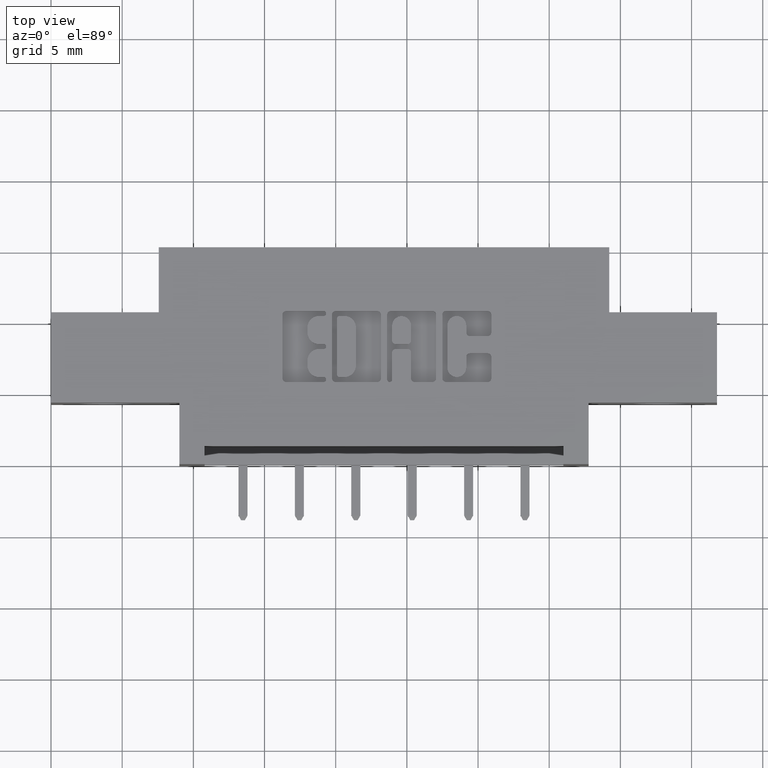
[diagram: clean part render]
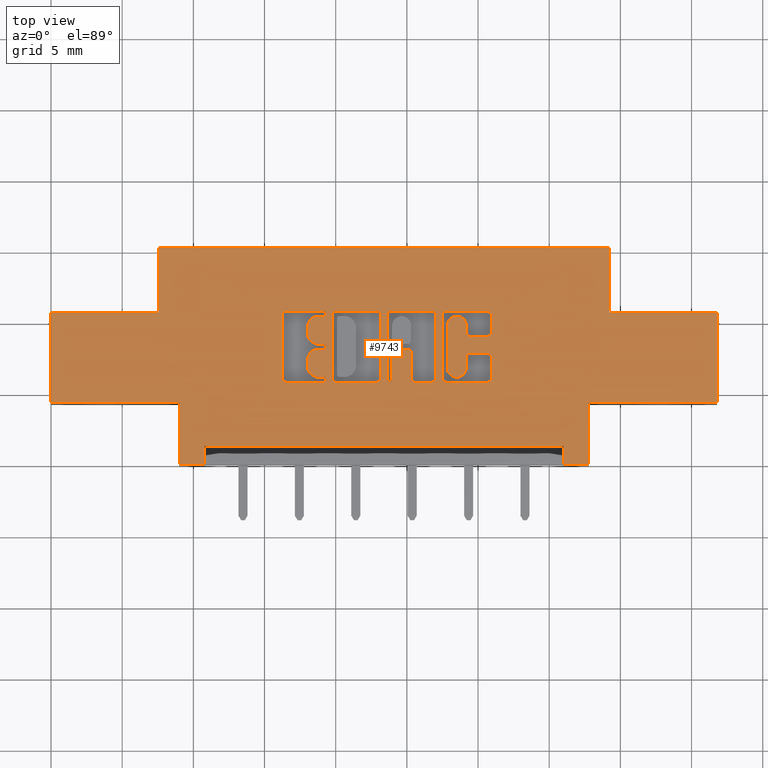
[diagram: same view with one face highlighted and labeled with its STEP entity id]
A machine part, top view. The second image highlights one B-rep face of the part: STEP entity #9743.
In plain terms, the highlighted planar face has unit normal (0, 0, -1).
Its self-contained STEP definition (entity closure, byte-faithful):
#21 = CARTESIAN_POINT ( 'NONE',  ( 0.9433306497136472200, 0.3083133606535449800, 0.0000000000000000000 ) ) ;
#33 = EDGE_CURVE ( 'NONE', #8542, #6679, #8285, .T. ) ;
#39 = ORIENTED_EDGE ( 'NONE', *, *, #1514, .F. ) ;
#88 = DIRECTION ( 'NONE',  ( -0.0000000000000000000, 1.000000000000000000, -0.0000000000000000000 ) ) ;
#108 = DIRECTION ( 'NONE',  ( -1.000000000000000000, -0.0000000000000000000, -0.0000000000000000000 ) ) ;
#117 = DIRECTION ( 'NONE',  ( -0.0000000000000000000, 0.0000000000000000000, 1.000000000000000000 ) ) ;
#128 = CARTESIAN_POINT ( 'NONE',  ( 0.7867707099629762700, 0.2366589681657893500, 0.0000000000000000000 ) ) ;
#139 = LINE ( 'NONE', #2019, #152 ) ;
#141 = DIRECTION ( 'NONE',  ( -0.0000000000000000000, 0.0000000000000000000, 1.000000000000000000 ) ) ;
#150 = CARTESIAN_POINT ( 'NONE',  ( 0.7406370600050843400, 0.3632811137948577800, 0.0000000000000000000 ) ) ;
#152 = VECTOR ( 'NONE', #2047, 39.37007874015748100 ) ;
#153 = CARTESIAN_POINT ( 'NONE',  ( 0.7610045756779980600, 0.2337142671046473500, 0.0000000000000000000 ) ) ;
#156 = CARTESIAN_POINT ( 'NONE',  ( 1.092038053301299700, 0.4133410318342095000, 0.0000000000000000000 ) ) ;
#182 = VERTEX_POINT ( 'NONE', #4672 ) ;
#203 = CIRCLE ( 'NONE', #4453, 0.03141014465218178200 ) ;
#209 = DIRECTION ( 'NONE',  ( 1.000000000000000000, 0.0000000000000000000, 0.0000000000000000000 ) ) ;
#219 = DIRECTION ( 'NONE',  ( -0.0000000000000000000, 0.0000000000000000000, 1.000000000000000000 ) ) ;
#223 = EDGE_CURVE ( 'NONE', #9646, #931, #8134, .T. ) ;
#237 = CARTESIAN_POINT ( 'NONE',  ( 1.055229290037010800, 0.2268432979619840200, 0.0000000000000000000 ) ) ;
#252 = DIRECTION ( 'NONE',  ( -0.0000000000000000000, 0.0000000000000000000, 1.000000000000000000 ) ) ;
#266 = ORIENTED_EDGE ( 'NONE', *, *, #223, .F. ) ;
#284 = EDGE_CURVE ( 'NONE', #9418, #9646, #8185, .T. ) ;
#287 = EDGE_CURVE ( 'NONE', #1601, #9418, #8143, .T. ) ;
#316 = DIRECTION ( 'NONE',  ( 1.000000000000000000, 0.0000000000000000000, 0.0000000000000000000 ) ) ;
#399 = CIRCLE ( 'NONE', #4157, 0.009815670203822599700 ) ;
#407 = VERTEX_POINT ( 'NONE', #8339 ) ;
#413 = VECTOR ( 'NONE', #4755, 39.37007874015748100 ) ;
#421 = LINE ( 'NONE', #3508, #413 ) ;
#422 = CARTESIAN_POINT ( 'NONE',  ( 0.0000000000000000000, 0.5999999999999999800, 0.0000000000000000000 ) ) ;
#427 = CARTESIAN_POINT ( 'NONE',  ( 0.0000000000000000000, 0.4199999999999999800, 0.0000000000000000000 ) ) ;
#441 = CARTESIAN_POINT ( 'NONE',  ( 0.7541336064154146000, 0.2268432979619851300, 0.0000000000000000000 ) ) ;
#452 = AXIS2_PLACEMENT_3D ( 'NONE', #5043, #5027, #5007 ) ;
#495 = EDGE_CURVE ( 'NONE', #7582, #1601, #7491, .T. ) ;
#496 = LINE ( 'NONE', #9328, #771 ) ;
#503 = EDGE_CURVE ( 'NONE', #5345, #10076, #7636, .T. ) ;
#507 = CARTESIAN_POINT ( 'NONE',  ( 0.6498421106199383500, 0.4133410318342095000, 0.0000000000000000000 ) ) ;
#514 = EDGE_CURVE ( 'NONE', #5527, #7582, #7455, .T. ) ;
#530 = CARTESIAN_POINT ( 'NONE',  ( 0.3549999999999999800, 0.1699999999999999800, 0.0000000000000000000 ) ) ;
#547 = EDGE_CURVE ( 'NONE', #8929, #5527, #7449, .T. ) ;
#589 = CARTESIAN_POINT ( 'NONE',  ( 0.0000000000000000000, 0.5999999999999999800, 0.0000000000000000000 ) ) ;
#590 = VERTEX_POINT ( 'NONE', #9009 ) ;
#596 = AXIS2_PLACEMENT_3D ( 'NONE', #671, #668, #1829 ) ;
#616 = VERTEX_POINT ( 'NONE', #7926 ) ;
#622 = EDGE_CURVE ( 'NONE', #5489, #5962, #7249, .T. ) ;
#668 = DIRECTION ( 'NONE',  ( -0.0000000000000000000, 0.0000000000000000000, 1.000000000000000000 ) ) ;
#671 = CARTESIAN_POINT ( 'NONE',  ( 1.158293827176967400, 0.2965345564089689700, 0.0000000000000000000 ) ) ;
#672 = ORIENTED_EDGE ( 'NONE', *, *, #5247, .T. ) ;
#676 = CARTESIAN_POINT ( 'NONE',  ( 0.9124112885716693100, 0.0000000000000000000, 0.0000000000000000000 ) ) ;
#680 = ORIENTED_EDGE ( 'NONE', *, *, #33, .F. ) ;
#716 = EDGE_CURVE ( 'NONE', #5034, #8929, #7025, .T. ) ;
#717 = EDGE_CURVE ( 'NONE', #5621, #9828, #7047, .T. ) ;
#722 = ORIENTED_EDGE ( 'NONE', *, *, #1473, .F. ) ;
#741 = VECTOR ( 'NONE', #5679, 39.37007874015748100 ) ;
#744 = ORIENTED_EDGE ( 'NONE', *, *, #4289, .F. ) ;
#752 = LINE ( 'NONE', #6107, #741 ) ;
#757 = EDGE_CURVE ( 'NONE', #942, #9828, #6960, .T. ) ;
#766 = CARTESIAN_POINT ( 'NONE',  ( 1.092038053301299700, 0.4231567020380504500, 0.0000000000000000000 ) ) ;
#768 = EDGE_CURVE ( 'NONE', #5962, #7728, #6931, .T. ) ;
#771 = VECTOR ( 'NONE', #1612, 39.37007874015748100 ) ;
#794 = CARTESIAN_POINT ( 'NONE',  ( 0.7867707099630104600, 0.4133410318342095000, 0.0000000000000000000 ) ) ;
#800 = CIRCLE ( 'NONE', #5126, 0.009815670203841039800 ) ;
#806 = EDGE_CURVE ( 'NONE', #7728, #6201, #6831, .T. ) ;
#810 = DIRECTION ( 'NONE',  ( 1.000000000000000000, 0.0000000000000000000, 0.0000000000000000000 ) ) ;
#841 = DIRECTION ( 'NONE',  ( -0.0000000000000000000, 0.0000000000000000000, 1.000000000000000000 ) ) ;
#847 = EDGE_CURVE ( 'NONE', #6201, #8828, #6662, .T. ) ;
#872 = EDGE_CURVE ( 'NONE', #942, #7077, #6530, .T. ) ;
#875 = FACE_BOUND ( 'NONE', #9797, .T. ) ;
#884 = EDGE_CURVE ( 'NONE', #8828, #6584, #6486, .T. ) ;
#888 = EDGE_CURVE ( 'NONE', #2875, #7077, #6730, .T. ) ;
#904 = VECTOR ( 'NONE', #3423, 39.37007874015748100 ) ;
#918 = CARTESIAN_POINT ( 'NONE',  ( 1.842000000000000700, 0.1699999999999999800, 2.255799404029425300E-016 ) ) ;
#920 = ORIENTED_EDGE ( 'NONE', *, *, #503, .F. ) ;
#931 = VERTEX_POINT ( 'NONE', #6087 ) ;
#935 = VERTEX_POINT ( 'NONE', #4328 ) ;
#942 = VERTEX_POINT ( 'NONE', #2085 ) ;
#952 = VERTEX_POINT ( 'NONE', #3290 ) ;
#956 = EDGE_CURVE ( 'NONE', #2875, #7494, #6340, .T. ) ;
#960 = EDGE_CURVE ( 'NONE', #8075, #7494, #6200, .T. ) ;
#1002 = CARTESIAN_POINT ( 'NONE',  ( 0.7769550397591695700, 0.0000000000000000000, 0.0000000000000000000 ) ) ;
#1020 = LINE ( 'NONE', #9261, #904 ) ;
#1027 = ORIENTED_EDGE ( 'NONE', *, *, #284, .F. ) ;
#1045 = EDGE_CURVE ( 'NONE', #2731, #3276, #5266, .T. ) ;
#1055 = ORIENTED_EDGE ( 'NONE', *, *, #1512, .F. ) ;
#1064 = CARTESIAN_POINT ( 'NONE',  ( 1.082222383097458900, 0.4133410318342095000, 0.0000000000000000000 ) ) ;
#1073 = VECTOR ( 'NONE', #1980, 39.37007874015748100 ) ;
#1081 = CIRCLE ( 'NONE', #3833, 0.009815670203806345400 ) ;
#1092 = ORIENTED_EDGE ( 'NONE', *, *, #1623, .F. ) ;
#1106 = EDGE_CURVE ( 'NONE', #8075, #5968, #4146, .T. ) ;
#1132 = ORIENTED_EDGE ( 'NONE', *, *, #287, .F. ) ;
#1144 = VECTOR ( 'NONE', #6447, 39.37007874015748100 ) ;
#1158 = FACE_BOUND ( 'NONE', #6400, .T. ) ;
#1159 = EDGE_CURVE ( 'NONE', #6584, #6630, #3474, .T. ) ;
#1189 = VERTEX_POINT ( 'NONE', #3722 ) ;
#1219 = EDGE_CURVE ( 'NONE', #5968, #1914, #3357, .T. ) ;
#1242 = EDGE_CURVE ( 'NONE', #1914, #407, #3030, .T. ) ;
#1278 = EDGE_CURVE ( 'NONE', #590, #5514, #2960, .T. ) ;
#1279 = LINE ( 'NONE', #2430, #1073 ) ;
#1282 = VERTEX_POINT ( 'NONE', #7853 ) ;
#1300 = DIRECTION ( 'NONE',  ( -0.0000000000000000000, -1.000000000000000000, -0.0000000000000000000 ) ) ;
#1343 = CARTESIAN_POINT ( 'NONE',  ( -0.0000000000000000000, 0.4094147637527351100, 0.0000000000000000000 ) ) ;
#1373 = VECTOR ( 'NONE', #5299, 39.37007874015748100 ) ;
#1388 = VERTEX_POINT ( 'NONE', #8368 ) ;
#1410 = EDGE_CURVE ( 'NONE', #407, #6403, #2510, .T. ) ;
#1427 = DIRECTION ( 'NONE',  ( 1.000000000000000000, 0.0000000000000000000, 0.0000000000000000000 ) ) ;
#1431 = LINE ( 'NONE', #6019, #1373 ) ;
#1438 = EDGE_CURVE ( 'NONE', #9437, #590, #1898, .T. ) ;
#1450 = ORIENTED_EDGE ( 'NONE', *, *, #495, .F. ) ;
#1473 = EDGE_CURVE ( 'NONE', #6630, #7035, #1431, .T. ) ;
#1483 = VERTEX_POINT ( 'NONE', #5923 ) ;
#1489 = VECTOR ( 'NONE', #108, 39.37007874015748100 ) ;
#1496 = AXIS2_PLACEMENT_3D ( 'NONE', #2896, #3178, #2995 ) ;
#1499 = EDGE_CURVE ( 'NONE', #6403, #7618, #1738, .T. ) ;
#1503 = ORIENTED_EDGE ( 'NONE', *, *, #3477, .F. ) ;
#1508 = AXIS2_PLACEMENT_3D ( 'NONE', #5809, #252, #6722 ) ;
#1512 = EDGE_CURVE ( 'NONE', #3323, #8557, #1279, .T. ) ;
#1514 = EDGE_CURVE ( 'NONE', #7035, #952, #1081, .T. ) ;
#1567 = DIRECTION ( 'NONE',  ( 1.000000000000000000, 0.0000000000000000000, 0.0000000000000000000 ) ) ;
#1578 = ORIENTED_EDGE ( 'NONE', *, *, #3872, .F. ) ;
#1601 = VERTEX_POINT ( 'NONE', #6713 ) ;
#1604 = DIRECTION ( 'NONE',  ( 1.000000000000000000, 0.0000000000000000000, 0.0000000000000000000 ) ) ;
#1612 = DIRECTION ( 'NONE',  ( -0.0000000000000000000, -1.000000000000000000, -0.0000000000000000000 ) ) ;
#1623 = EDGE_CURVE ( 'NONE', #9794, #5345, #421, .T. ) ;
#1631 = CARTESIAN_POINT ( 'NONE',  ( 0.7769550397591695700, 0.2366589681657893500, 0.0000000000000000000 ) ) ;
#1641 = DIRECTION ( 'NONE',  ( -0.0000000000000000000, 0.0000000000000000000, 1.000000000000000000 ) ) ;
#1652 = CARTESIAN_POINT ( 'NONE',  ( 1.158293827176977600, 0.3637718973050446100, 0.0000000000000000000 ) ) ;
#1654 = CARTESIAN_POINT ( 'NONE',  ( 0.7406370600050843400, 0.3318709691426832700, 0.0000000000000000000 ) ) ;
#1661 = LINE ( 'NONE', #10205, #1489 ) ;
#1686 = EDGE_CURVE ( 'NONE', #952, #616, #139, .T. ) ;
#1733 = EDGE_CURVE ( 'NONE', #616, #6072, #8330, .T. ) ;
#1736 = DIRECTION ( 'NONE',  ( -0.0000000000000000000, 0.0000000000000000000, 1.000000000000000000 ) ) ;
#1738 = LINE ( 'NONE', #8567, #1144 ) ;
#1762 = EDGE_CURVE ( 'NONE', #2519, #7618, #8274, .T. ) ;
#1763 = EDGE_CURVE ( 'NONE', #2519, #5009, #8266, .T. ) ;
#1775 = EDGE_CURVE ( 'NONE', #5621, #5009, #7478, .T. ) ;
#1780 = CARTESIAN_POINT ( 'NONE',  ( 0.2980000000000001000, 0.5999999999999999800, 0.0000000000000000000 ) ) ;
#1789 = ORIENTED_EDGE ( 'NONE', *, *, #3949, .F. ) ;
#1813 = VECTOR ( 'NONE', #5616, 39.37007874015748100 ) ;
#1829 = DIRECTION ( 'NONE',  ( 1.000000000000000000, 0.0000000000000000000, 0.0000000000000000000 ) ) ;
#1859 = EDGE_CURVE ( 'NONE', #6131, #2404, #6070, .T. ) ;
#1876 = EDGE_CURVE ( 'NONE', #5074, #2404, #5825, .T. ) ;
#1898 = LINE ( 'NONE', #8990, #1813 ) ;
#1914 = VERTEX_POINT ( 'NONE', #8551 ) ;
#1926 = AXIS2_PLACEMENT_3D ( 'NONE', #589, #9302, #4446 ) ;
#1980 = DIRECTION ( 'NONE',  ( -1.000000000000000000, 0.0000000000000000000, 0.0000000000000000000 ) ) ;
#2002 = VERTEX_POINT ( 'NONE', #427 ) ;
#2019 = CARTESIAN_POINT ( 'NONE',  ( 1.217678631909940400, 0.0000000000000000000, 0.0000000000000000000 ) ) ;
#2047 = DIRECTION ( 'NONE',  ( 0.0000000000000000000, 1.000000000000000000, -0.0000000000000000000 ) ) ;
#2071 = AXIS2_PLACEMENT_3D ( 'NONE', #10180, #5864, #316 ) ;
#2085 = CARTESIAN_POINT ( 'NONE',  ( 1.065044960240807000, 0.4133410318342003500, 0.0000000000000000000 ) ) ;
#2098 = ORIENTED_EDGE ( 'NONE', *, *, #9593, .F. ) ;
#2107 = AXIS2_PLACEMENT_3D ( 'NONE', #7045, #2501, #8288 ) ;
#2138 = ORIENTED_EDGE ( 'NONE', *, *, #4144, .F. ) ;
#2153 = VERTEX_POINT ( 'NONE', #9396 ) ;
#2170 = VERTEX_POINT ( 'NONE', #10214 ) ;
#2183 = DIRECTION ( 'NONE',  ( 1.000000000000000000, 0.0000000000000000000, 0.0000000000000000000 ) ) ;
#2255 = CARTESIAN_POINT ( 'NONE',  ( 1.005660155507788200, 0.2366589681657872400, 0.0000000000000000000 ) ) ;
#2282 = DIRECTION ( 'NONE',  ( -0.0000000000000000000, 0.0000000000000000000, 1.000000000000000000 ) ) ;
#2287 = DIRECTION ( 'NONE',  ( 0.0000000000000000000, -1.000000000000000000, 0.0000000000000000000 ) ) ;
#2324 = CARTESIAN_POINT ( 'NONE',  ( 0.7406370600051098700, 0.2719953808994897700, 0.0000000000000000000 ) ) ;
#2347 = DIRECTION ( 'NONE',  ( 1.000000000000000000, 0.0000000000000000000, 0.0000000000000000000 ) ) ;
#2357 = LINE ( 'NONE', #8070, #2521 ) ;
#2364 = DIRECTION ( 'NONE',  ( -0.0000000000000000000, 0.0000000000000000000, 1.000000000000000000 ) ) ;
#2366 = VERTEX_POINT ( 'NONE', #9384 ) ;
#2392 = CARTESIAN_POINT ( 'NONE',  ( 0.7541336065353515500, 0.4162857328953856700, 0.0000000000000000000 ) ) ;
#2404 = VERTEX_POINT ( 'NONE', #9995 ) ;
#2427 = EDGE_CURVE ( 'NONE', #9437, #9932, #8169, .T. ) ;
#2430 = CARTESIAN_POINT ( 'NONE',  ( 0.0000000000000000000, 0.3318709691426832700, 0.0000000000000000000 ) ) ;
#2433 = DIRECTION ( 'NONE',  ( -1.000000000000000000, 0.0000000000000000000, 0.0000000000000000000 ) ) ;
#2445 = CARTESIAN_POINT ( 'NONE',  ( -0.0000000000000000000, 0.4231567020380060400, 0.0000000000000000000 ) ) ;
#2453 = DIRECTION ( 'NONE',  ( 1.000000000000000000, 0.0000000000000000000, 0.0000000000000000000 ) ) ;
#2501 = DIRECTION ( 'NONE',  ( -0.0000000000000000000, 0.0000000000000000000, 1.000000000000000000 ) ) ;
#2510 = CIRCLE ( 'NONE', #7091, 0.009815670203803203800 ) ;
#2519 = VERTEX_POINT ( 'NONE', #5794 ) ;
#2521 = VECTOR ( 'NONE', #7936, 39.37007874015748100 ) ;
#2523 = ORIENTED_EDGE ( 'NONE', *, *, #9678, .F. ) ;
#2529 = CARTESIAN_POINT ( 'NONE',  ( 0.0000000000000000000, 0.3063502266127569600, 0.0000000000000000000 ) ) ;
#2535 = DIRECTION ( 'NONE',  ( 1.000000000000000000, 0.0000000000000000000, 0.0000000000000000000 ) ) ;
#2554 = CARTESIAN_POINT ( 'NONE',  ( 1.148478156973166100, 0.0000000000000000000, 0.0000000000000000000 ) ) ;
#2590 = EDGE_CURVE ( 'NONE', #6072, #182, #7704, .T. ) ;
#2591 = EDGE_CURVE ( 'NONE', #9401, #2170, #7462, .T. ) ;
#2595 = CARTESIAN_POINT ( 'NONE',  ( 1.095964321382818700, 0.3831578459575290000, 0.0000000000000000000 ) ) ;
#2596 = CARTESIAN_POINT ( 'NONE',  ( 0.0000000000000000000, 0.4231567020380321300, 0.0000000000000000000 ) ) ;
#2612 = CARTESIAN_POINT ( 'NONE',  ( 1.055229290037014200, 0.4231567020380060400, 0.0000000000000000000 ) ) ;
#2620 = AXIS2_PLACEMENT_3D ( 'NONE', #150, #141, #5424 ) ;
#2637 = DIRECTION ( 'NONE',  ( 1.000000000000000000, 0.0000000000000000000, 0.0000000000000000000 ) ) ;
#2641 = CIRCLE ( 'NONE', #1508, 0.006870969142663458500 ) ;
#2719 = CIRCLE ( 'NONE', #9373, 0.009815670203805798900 ) ;
#2731 = VERTEX_POINT ( 'NONE', #8246 ) ;
#2762 = ORIENTED_EDGE ( 'NONE', *, *, #4692, .F. ) ;
#2784 = DIRECTION ( 'NONE',  ( 1.000000000000000000, 0.0000000000000000000, 0.0000000000000000000 ) ) ;
#2857 = DIRECTION ( 'NONE',  ( 1.000000000000000000, -0.0000000000000000000, -0.0000000000000000000 ) ) ;
#2875 = VERTEX_POINT ( 'NONE', #237 ) ;
#2889 = VECTOR ( 'NONE', #1427, 39.37007874015748100 ) ;
#2896 = CARTESIAN_POINT ( 'NONE',  ( 1.122221239177992400, 0.3831578459575290000, 0.0000000000000000000 ) ) ;
#2903 = ORIENTED_EDGE ( 'NONE', *, *, #4783, .F. ) ;
#2930 = EDGE_CURVE ( 'NONE', #182, #6131, #5178, .T. ) ;
#2946 = CARTESIAN_POINT ( 'NONE',  ( 0.9394043816321276900, 0.4231567020380060400, 0.0000000000000000000 ) ) ;
#2954 = EDGE_CURVE ( 'NONE', #1189, #9932, #5082, .T. ) ;
#2960 = CIRCLE ( 'NONE', #7343, 0.006870969142663458500 ) ;
#2995 = DIRECTION ( 'NONE',  ( 1.000000000000000000, 0.0000000000000000000, 0.0000000000000000000 ) ) ;
#3006 = VECTOR ( 'NONE', #9779, 39.37007874015748100 ) ;
#3012 = VECTOR ( 'NONE', #10392, 39.37007874015748100 ) ;
#3025 = LINE ( 'NONE', #1343, #2889 ) ;
#3030 = LINE ( 'NONE', #8425, #3006 ) ;
#3166 = LINE ( 'NONE', #7917, #3012 ) ;
#3175 = CIRCLE ( 'NONE', #7714, 0.009815670203811535700 ) ;
#3178 = DIRECTION ( 'NONE',  ( -0.0000000000000000000, 0.0000000000000000000, 1.000000000000000000 ) ) ;
#3220 = CIRCLE ( 'NONE', #1496, 0.02625691779517367100 ) ;
#3223 = CIRCLE ( 'NONE', #6040, 0.006870969142648433200 ) ;
#3247 = EDGE_CURVE ( 'NONE', #2731, #8557, #3393, .T. ) ;
#3250 = EDGE_CURVE ( 'NONE', #5074, #7595, #3383, .T. ) ;
#3276 = VERTEX_POINT ( 'NONE', #7742 ) ;
#3290 = CARTESIAN_POINT ( 'NONE',  ( 1.217678631909940400, 0.2366589681657823900, 0.0000000000000000000 ) ) ;
#3302 = EDGE_CURVE ( 'NONE', #9630, #7595, #3220, .T. ) ;
#3317 = LINE ( 'NONE', #7069, #4099 ) ;
#3323 = VERTEX_POINT ( 'NONE', #6594 ) ;
#3338 = ORIENTED_EDGE ( 'NONE', *, *, #2591, .T. ) ;
#3340 = LINE ( 'NONE', #8853, #4475 ) ;
#3345 = VECTOR ( 'NONE', #4352, 39.37007874015748100 ) ;
#3357 = CIRCLE ( 'NONE', #7443, 0.009815670203796920600 ) ;
#3383 = LINE ( 'NONE', #7350, #3345 ) ;
#3393 = CIRCLE ( 'NONE', #2620, 0.03141014465217454400 ) ;
#3402 = CARTESIAN_POINT ( 'NONE',  ( 0.7541336065353516600, 0.4094147637527351100, 0.0000000000000000000 ) ) ;
#3413 = CARTESIAN_POINT ( 'NONE',  ( 0.0000000000000000000, 0.1699999999999999800, 0.0000000000000000000 ) ) ;
#3423 = DIRECTION ( 'NONE',  ( -1.000000000000000000, -0.0000000000000000000, -0.0000000000000000000 ) ) ;
#3451 = PLANE ( 'NONE',  #1926 ) ;
#3453 = AXIS2_PLACEMENT_3D ( 'NONE', #9444, #9704, #2535 ) ;
#3474 = CIRCLE ( 'NONE', #7563, 0.009815670203806754800 ) ;
#3476 = DIRECTION ( 'NONE',  ( 1.000000000000000000, 0.0000000000000000000, 0.0000000000000000000 ) ) ;
#3477 = EDGE_CURVE ( 'NONE', #2366, #9794, #2719, .T. ) ;
#3478 = AXIS2_PLACEMENT_3D ( 'NONE', #6299, #5900, #7383 ) ;
#3491 = LINE ( 'NONE', #7320, #4710 ) ;
#3498 = AXIS2_PLACEMENT_3D ( 'NONE', #6930, #7834, #7716 ) ;
#3508 = CARTESIAN_POINT ( 'NONE',  ( -1.634053534412011400E-015, 0.2268432979619796900, 0.0000000000000000000 ) ) ;
#3519 = AXIS2_PLACEMENT_3D ( 'NONE', #8030, #8018, #8112 ) ;
#3536 = CARTESIAN_POINT ( 'NONE',  ( 0.6498421106199189200, 0.2268432979619843800, 0.0000000000000000000 ) ) ;
#3548 = CARTESIAN_POINT ( 'NONE',  ( 0.7541336064154146000, 0.2405852362473096300, 0.0000000000000000000 ) ) ;
#3559 = ORIENTED_EDGE ( 'NONE', *, *, #6671, .F. ) ;
#3630 = ORIENTED_EDGE ( 'NONE', *, *, #6405, .F. ) ;
#3636 = LINE ( 'NONE', #530, #4796 ) ;
#3670 = ORIENTED_EDGE ( 'NONE', *, *, #514, .F. ) ;
#3681 = CARTESIAN_POINT ( 'NONE',  ( 1.217678631909972400, 0.3637718973050380600, 0.0000000000000000000 ) ) ;
#3722 = CARTESIAN_POINT ( 'NONE',  ( 0.7092269153529280300, 0.2719953808994897700, 0.0000000000000000000 ) ) ;
#3833 = AXIS2_PLACEMENT_3D ( 'NONE', #5072, #5022, #2637 ) ;
#3872 = EDGE_CURVE ( 'NONE', #5449, #2366, #752, .T. ) ;
#3949 = EDGE_CURVE ( 'NONE', #8803, #5449, #399, .T. ) ;
#4025 = CARTESIAN_POINT ( 'NONE',  ( 0.0000000000000000000, 0.4231567020380504500, 0.0000000000000000000 ) ) ;
#4063 = CARTESIAN_POINT ( 'NONE',  ( 1.207862961706132300, 0.4133410318342103400, 0.0000000000000000000 ) ) ;
#4099 = VECTOR ( 'NONE', #1567, 39.37007874015748100 ) ;
#4111 = DIRECTION ( 'NONE',  ( -0.0000000000000000000, 0.0000000000000000000, 1.000000000000000000 ) ) ;
#4113 = CIRCLE ( 'NONE', #452, 0.009815670203804980100 ) ;
#4117 = ORIENTED_EDGE ( 'NONE', *, *, #6385, .F. ) ;
#4144 = EDGE_CURVE ( 'NONE', #8728, #8803, #6947, .T. ) ;
#4146 = LINE ( 'NONE', #8333, #4308 ) ;
#4157 = AXIS2_PLACEMENT_3D ( 'NONE', #507, #219, #209 ) ;
#4159 = CARTESIAN_POINT ( 'NONE',  ( 1.055229290037011900, 0.4133410318342097800, 0.0000000000000000000 ) ) ;
#4166 = EDGE_CURVE ( 'NONE', #9630, #1483, #7086, .T. ) ;
#4265 = VERTEX_POINT ( 'NONE', #9534 ) ;
#4285 = DIRECTION ( 'NONE',  ( -1.000000000000000000, 0.0000000000000000000, 0.0000000000000000000 ) ) ;
#4289 = EDGE_CURVE ( 'NONE', #10076, #8542, #5159, .T. ) ;
#4308 = VECTOR ( 'NONE', #7798, 39.37007874015748100 ) ;
#4328 = CARTESIAN_POINT ( 'NONE',  ( 1.207862961706167400, 0.3539562271012330300, 0.0000000000000000000 ) ) ;
#4344 = LINE ( 'NONE', #6627, #4455 ) ;
#4352 = DIRECTION ( 'NONE',  ( 0.0000000000000000000, 1.000000000000000000, -0.0000000000000000000 ) ) ;
#4379 = CARTESIAN_POINT ( 'NONE',  ( 0.7541336065353515500, 0.4162857328953856700, 0.0000000000000000000 ) ) ;
#4446 = DIRECTION ( 'NONE',  ( -1.000000000000000000, 0.0000000000000000000, -0.0000000000000000000 ) ) ;
#4453 = AXIS2_PLACEMENT_3D ( 'NONE', #2324, #2282, #2183 ) ;
#4455 = VECTOR ( 'NONE', #6945, 39.37007874015748100 ) ;
#4475 = VECTOR ( 'NONE', #8884, 39.37007874015748100 ) ;
#4479 = EDGE_CURVE ( 'NONE', #2002, #9681, #4344, .T. ) ;
#4552 = EDGE_CURVE ( 'NONE', #935, #5489, #4113, .T. ) ;
#4586 = ORIENTED_EDGE ( 'NONE', *, *, #6371, .F. ) ;
#4600 = LINE ( 'NONE', #422, #4827 ) ;
#4660 = CARTESIAN_POINT ( 'NONE',  ( 1.158293827176977600, 0.3539562271012330300, 0.0000000000000000000 ) ) ;
#4672 = CARTESIAN_POINT ( 'NONE',  ( 1.158293827176967400, 0.3063502266127569600, 0.0000000000000000000 ) ) ;
#4692 = EDGE_CURVE ( 'NONE', #7468, #10334, #3223, .T. ) ;
#4710 = VECTOR ( 'NONE', #2857, 39.37007874015748100 ) ;
#4751 = EDGE_CURVE ( 'NONE', #1483, #6319, #3175, .T. ) ;
#4755 = DIRECTION ( 'NONE',  ( 1.000000000000000000, 7.203446383881654600E-015, 0.0000000000000000000 ) ) ;
#4783 = EDGE_CURVE ( 'NONE', #7495, #7468, #3025, .T. ) ;
#4796 = VECTOR ( 'NONE', #6093, 39.37007874015748100 ) ;
#4827 = VECTOR ( 'NONE', #6892, 39.37007874015748100 ) ;
#4893 = EDGE_CURVE ( 'NONE', #6319, #935, #2357, .T. ) ;
#4906 = ORIENTED_EDGE ( 'NONE', *, *, #6252, .T. ) ;
#4940 = CARTESIAN_POINT ( 'NONE',  ( 0.0000000000000000000, 0.2268432979619840200, 0.0000000000000000000 ) ) ;
#4957 = ORIENTED_EDGE ( 'NONE', *, *, #5898, .F. ) ;
#4979 = CARTESIAN_POINT ( 'NONE',  ( 1.082222383097458900, 0.2366589681657893500, 0.0000000000000000000 ) ) ;
#5004 = DIRECTION ( 'NONE',  ( 0.0000000000000000000, -1.000000000000000000, 0.0000000000000000000 ) ) ;
#5007 = DIRECTION ( 'NONE',  ( 1.000000000000000000, 0.0000000000000000000, 0.0000000000000000000 ) ) ;
#5009 = VERTEX_POINT ( 'NONE', #10439 ) ;
#5020 = VECTOR ( 'NONE', #5730, 39.37007874015748100 ) ;
#5022 = DIRECTION ( 'NONE',  ( -0.0000000000000000000, 0.0000000000000000000, 1.000000000000000000 ) ) ;
#5027 = DIRECTION ( 'NONE',  ( -0.0000000000000000000, 0.0000000000000000000, 1.000000000000000000 ) ) ;
#5034 = VERTEX_POINT ( 'NONE', #10238 ) ;
#5036 = EDGE_CURVE ( 'NONE', #8934, #9681, #1661, .T. ) ;
#5043 = CARTESIAN_POINT ( 'NONE',  ( 1.207862961706167400, 0.3637718973050380600, 0.0000000000000000000 ) ) ;
#5072 = CARTESIAN_POINT ( 'NONE',  ( 1.207862961706134500, 0.2366589681657893500, 0.0000000000000000000 ) ) ;
#5074 = VERTEX_POINT ( 'NONE', #9589 ) ;
#5082 = LINE ( 'NONE', #5644, #5020 ) ;
#5084 = CARTESIAN_POINT ( 'NONE',  ( 0.7406370600051098700, 0.2405852362473080200, 0.0000000000000000000 ) ) ;
#5107 = DIRECTION ( 'NONE',  ( 1.000000000000000000, 0.0000000000000000000, 0.0000000000000000000 ) ) ;
#5126 = AXIS2_PLACEMENT_3D ( 'NONE', #7184, #1736, #7949 ) ;
#5127 = ORIENTED_EDGE ( 'NONE', *, *, #1159, .F. ) ;
#5140 = ORIENTED_EDGE ( 'NONE', *, *, #547, .F. ) ;
#5145 = DIRECTION ( 'NONE',  ( -1.000000000000000000, -1.189163988687022500E-013, 0.0000000000000000000 ) ) ;
#5150 = VECTOR ( 'NONE', #6885, 39.37007874015748100 ) ;
#5155 = ORIENTED_EDGE ( 'NONE', *, *, #884, .F. ) ;
#5159 = CIRCLE ( 'NONE', #7400, 0.006870969142662229500 ) ;
#5162 = ORIENTED_EDGE ( 'NONE', *, *, #5647, .F. ) ;
#5171 = CARTESIAN_POINT ( 'NONE',  ( 0.9958444853039849500, 0.3083133606535428700, 0.0000000000000000000 ) ) ;
#5173 = ORIENTED_EDGE ( 'NONE', *, *, #716, .F. ) ;
#5178 = CIRCLE ( 'NONE', #596, 0.009815670203788042300 ) ;
#5205 = ORIENTED_EDGE ( 'NONE', *, *, #717, .T. ) ;
#5236 = CIRCLE ( 'NONE', #2071, 0.03141014465221592800 ) ;
#5243 = DIRECTION ( 'NONE',  ( 1.000000000000000000, 0.0000000000000000000, 0.0000000000000000000 ) ) ;
#5247 = EDGE_CURVE ( 'NONE', #1189, #6679, #203, .T. ) ;
#5266 = LINE ( 'NONE', #10299, #5150 ) ;
#5286 = ORIENTED_EDGE ( 'NONE', *, *, #757, .F. ) ;
#5287 = CARTESIAN_POINT ( 'NONE',  ( 1.207862961706156900, 0.3063502266127569600, 0.0000000000000000000 ) ) ;
#5299 = DIRECTION ( 'NONE',  ( 1.000000000000000000, 0.0000000000000000000, 0.0000000000000000000 ) ) ;
#5345 = VERTEX_POINT ( 'NONE', #441 ) ;
#5363 = ORIENTED_EDGE ( 'NONE', *, *, #872, .T. ) ;
#5366 = CARTESIAN_POINT ( 'NONE',  ( 1.148478156973179200, 0.2965345564089680900, 0.0000000000000000000 ) ) ;
#5391 = DIRECTION ( 'NONE',  ( 1.000000000000000000, 0.0000000000000000000, 0.0000000000000000000 ) ) ;
#5397 = ORIENTED_EDGE ( 'NONE', *, *, #888, .F. ) ;
#5417 = ORIENTED_EDGE ( 'NONE', *, *, #956, .T. ) ;
#5424 = DIRECTION ( 'NONE',  ( 1.000000000000000000, 0.0000000000000000000, 0.0000000000000000000 ) ) ;
#5427 = ORIENTED_EDGE ( 'NONE', *, *, #960, .F. ) ;
#5449 = VERTEX_POINT ( 'NONE', #7963 ) ;
#5466 = ORIENTED_EDGE ( 'NONE', *, *, #1106, .T. ) ;
#5467 = CARTESIAN_POINT ( 'NONE',  ( 0.0000000000000000000, 0.4231567020380504500, 0.0000000000000000000 ) ) ;
#5489 = VERTEX_POINT ( 'NONE', #3681 ) ;
#5496 = ORIENTED_EDGE ( 'NONE', *, *, #1219, .T. ) ;
#5514 = VERTEX_POINT ( 'NONE', #7268 ) ;
#5527 = VERTEX_POINT ( 'NONE', #10447 ) ;
#5543 = ORIENTED_EDGE ( 'NONE', *, *, #1242, .T. ) ;
#5563 = CARTESIAN_POINT ( 'NONE',  ( 0.9025956183678624000, 0.2268432979619826000, 0.0000000000000000000 ) ) ;
#5597 = EDGE_CURVE ( 'NONE', #2002, #1282, #7036, .T. ) ;
#5609 = ORIENTED_EDGE ( 'NONE', *, *, #1410, .T. ) ;
#5616 = DIRECTION ( 'NONE',  ( 1.000000000000000000, 0.0000000000000000000, 0.0000000000000000000 ) ) ;
#5621 = VERTEX_POINT ( 'NONE', #2946 ) ;
#5644 = CARTESIAN_POINT ( 'NONE',  ( 0.7092269153529280300, 0.0000000000000000000, 0.0000000000000000000 ) ) ;
#5646 = ORIENTED_EDGE ( 'NONE', *, *, #1499, .T. ) ;
#5647 = EDGE_CURVE ( 'NONE', #1282, #6246, #6632, .T. ) ;
#5651 = ORIENTED_EDGE ( 'NONE', *, *, #847, .F. ) ;
#5660 = CARTESIAN_POINT ( 'NONE',  ( 0.2980000000000001000, 0.4199999999999999800, 0.0000000000000000000 ) ) ;
#5670 = DIRECTION ( 'NONE',  ( 0.0000000000000000000, 1.000000000000000000, -0.0000000000000000000 ) ) ;
#5675 = ORIENTED_EDGE ( 'NONE', *, *, #1762, .F. ) ;
#5679 = DIRECTION ( 'NONE',  ( 0.0000000000000000000, -1.000000000000000000, 0.0000000000000000000 ) ) ;
#5683 = ORIENTED_EDGE ( 'NONE', *, *, #5597, .F. ) ;
#5689 = ORIENTED_EDGE ( 'NONE', *, *, #806, .F. ) ;
#5708 = ORIENTED_EDGE ( 'NONE', *, *, #1763, .T. ) ;
#5720 = ORIENTED_EDGE ( 'NONE', *, *, #1775, .F. ) ;
#5730 = DIRECTION ( 'NONE',  ( 0.0000000000000000000, 1.000000000000000000, -0.0000000000000000000 ) ) ;
#5776 = ORIENTED_EDGE ( 'NONE', *, *, #4479, .T. ) ;
#5794 = CARTESIAN_POINT ( 'NONE',  ( 0.9295887114283312200, 0.2337142671046473500, 0.0000000000000000000 ) ) ;
#5809 = CARTESIAN_POINT ( 'NONE',  ( 0.7541336065353102500, 0.3250000000000197700, 0.0000000000000000000 ) ) ;
#5825 = CIRCLE ( 'NONE', #3453, 0.02625691779518022500 ) ;
#5853 = CARTESIAN_POINT ( 'NONE',  ( 0.3549999999999999800, 0.1699999999999999800, 0.0000000000000000000 ) ) ;
#5864 = DIRECTION ( 'NONE',  ( -0.0000000000000000000, 0.0000000000000000000, 1.000000000000000000 ) ) ;
#5887 = VECTOR ( 'NONE', #9312, 39.37007874015748100 ) ;
#5898 = EDGE_CURVE ( 'NONE', #6246, #6481, #4600, .T. ) ;
#5900 = DIRECTION ( 'NONE',  ( -0.0000000000000000000, 0.0000000000000000000, 1.000000000000000000 ) ) ;
#5923 = CARTESIAN_POINT ( 'NONE',  ( 1.148478156973166100, 0.3637718973050446100, 0.0000000000000000000 ) ) ;
#5931 = DIRECTION ( 'NONE',  ( 0.0000000000000000000, -1.000000000000000000, 0.0000000000000000000 ) ) ;
#5948 = ORIENTED_EDGE ( 'NONE', *, *, #5036, .F. ) ;
#5962 = VERTEX_POINT ( 'NONE', #9782 ) ;
#5968 = VERTEX_POINT ( 'NONE', #5171 ) ;
#5982 = ORIENTED_EDGE ( 'NONE', *, *, #8392, .T. ) ;
#5998 = VECTOR ( 'NONE', #5931, 39.37007874015748100 ) ;
#6019 = CARTESIAN_POINT ( 'NONE',  ( -0.0000000000000000000, 0.2268432979619826000, 0.0000000000000000000 ) ) ;
#6037 = CARTESIAN_POINT ( 'NONE',  ( 1.092038053301265700, 0.2366589681657893500, 0.0000000000000000000 ) ) ;
#6040 = AXIS2_PLACEMENT_3D ( 'NONE', #2392, #2364, #2347 ) ;
#6070 = LINE ( 'NONE', #8509, #5998 ) ;
#6072 = VERTEX_POINT ( 'NONE', #5287 ) ;
#6087 = CARTESIAN_POINT ( 'NONE',  ( 0.9124112885716693100, 0.4133410318342095000, 0.0000000000000000000 ) ) ;
#6093 = DIRECTION ( 'NONE',  ( -0.0000000000000000000, -1.000000000000000000, -0.0000000000000000000 ) ) ;
#6098 = CIRCLE ( 'NONE', #8572, 0.006870969142648433200 ) ;
#6107 = CARTESIAN_POINT ( 'NONE',  ( 0.6400264404161156700, 0.0000000000000000000, 0.0000000000000000000 ) ) ;
#6131 = VERTEX_POINT ( 'NONE', #5366 ) ;
#6196 = VECTOR ( 'NONE', #4285, 39.37007874015748100 ) ;
#6200 = CIRCLE ( 'NONE', #8187, 0.009815670203803340800 ) ;
#6201 = VERTEX_POINT ( 'NONE', #766 ) ;
#6246 = VERTEX_POINT ( 'NONE', #1780 ) ;
#6252 = EDGE_CURVE ( 'NONE', #8670, #6481, #9324, .T. ) ;
#6254 = CARTESIAN_POINT ( 'NONE',  ( 1.065044960240807000, 0.0000000000000000000, 0.0000000000000000000 ) ) ;
#6259 = ORIENTED_EDGE ( 'NONE', *, *, #4893, .F. ) ;
#6299 = CARTESIAN_POINT ( 'NONE',  ( 0.9394043816321276900, 0.4133410318342095000, 0.0000000000000000000 ) ) ;
#6319 = VERTEX_POINT ( 'NONE', #4660 ) ;
#6340 = LINE ( 'NONE', #4940, #6196 ) ;
#6359 = CARTESIAN_POINT ( 'NONE',  ( 1.544000000000000700, 0.4199999999999999800, 0.0000000000000000000 ) ) ;
#6371 = EDGE_CURVE ( 'NONE', #8670, #1388, #3491, .T. ) ;
#6385 = EDGE_CURVE ( 'NONE', #1388, #9964, #9281, .T. ) ;
#6400 = EDGE_LOOP ( 'NONE', ( #6490, #6259, #7001, #7201, #7290, #7354, #7518, #9082, #9102, #9448, #9614, #10074, #39, #722, #5127, #5155, #5651, #5689, #6429, #6470 ) ) ;
#6403 = VERTEX_POINT ( 'NONE', #21 ) ;
#6405 = EDGE_CURVE ( 'NONE', #9964, #8935, #3340, .T. ) ;
#6422 = DIRECTION ( 'NONE',  ( 0.0000000000000000000, -1.000000000000000000, 0.0000000000000000000 ) ) ;
#6429 = ORIENTED_EDGE ( 'NONE', *, *, #768, .F. ) ;
#6441 = DIRECTION ( 'NONE',  ( -0.0000000000000000000, 0.0000000000000000000, 1.000000000000000000 ) ) ;
#6447 = DIRECTION ( 'NONE',  ( 0.0000000000000000000, -1.000000000000000000, 0.0000000000000000000 ) ) ;
#6464 = VECTOR ( 'NONE', #6422, 39.37007874015748100 ) ;
#6470 = ORIENTED_EDGE ( 'NONE', *, *, #622, .F. ) ;
#6481 = VERTEX_POINT ( 'NONE', #8178 ) ;
#6486 = LINE ( 'NONE', #7097, #6464 ) ;
#6490 = ORIENTED_EDGE ( 'NONE', *, *, #4552, .F. ) ;
#6494 = CARTESIAN_POINT ( 'NONE',  ( 0.0000000000000000000, 0.4199999999999999800, 0.0000000000000000000 ) ) ;
#6504 = VECTOR ( 'NONE', #5004, 39.37007874015748100 ) ;
#6519 = ORIENTED_EDGE ( 'NONE', *, *, #8491, .T. ) ;
#6530 = LINE ( 'NONE', #6254, #6504 ) ;
#6582 = VECTOR ( 'NONE', #88, 39.37007874015748100 ) ;
#6584 = VERTEX_POINT ( 'NONE', #4979 ) ;
#6594 = CARTESIAN_POINT ( 'NONE',  ( 0.7541336065353102500, 0.3318709691426832700, 0.0000000000000000000 ) ) ;
#6619 = EDGE_LOOP ( 'NONE', ( #5205, #5286, #5363, #5397, #5417, #5427, #5466, #5496, #5543, #5609, #5646, #5675, #5708, #5720 ) ) ;
#6627 = CARTESIAN_POINT ( 'NONE',  ( 0.0000000000000000000, 0.5999999999999999800, 0.0000000000000000000 ) ) ;
#6630 = VERTEX_POINT ( 'NONE', #8354 ) ;
#6632 = LINE ( 'NONE', #5660, #6582 ) ;
#6635 = DIRECTION ( 'NONE',  ( 0.0000000000000000000, 1.000000000000000000, -0.0000000000000000000 ) ) ;
#6662 = CIRCLE ( 'NONE', #8619, 0.009815670203840767500 ) ;
#6671 = EDGE_CURVE ( 'NONE', #8935, #2170, #9260, .T. ) ;
#6679 = VERTEX_POINT ( 'NONE', #5084 ) ;
#6713 = CARTESIAN_POINT ( 'NONE',  ( 0.7867707099629762700, 0.2268432979619826000, 0.0000000000000000000 ) ) ;
#6722 = DIRECTION ( 'NONE',  ( 1.000000000000000000, 0.0000000000000000000, 0.0000000000000000000 ) ) ;
#6730 = CIRCLE ( 'NONE', #8559, 0.009815670203796237100 ) ;
#6750 = ORIENTED_EDGE ( 'NONE', *, *, #1278, .F. ) ;
#6786 = VECTOR ( 'NONE', #9642, 39.37007874015748100 ) ;
#6831 = LINE ( 'NONE', #5467, #6786 ) ;
#6872 = EDGE_LOOP ( 'NONE', ( #7188, #266, #1027, #1132, #1450, #3670, #5140, #5173 ) ) ;
#6885 = DIRECTION ( 'NONE',  ( 0.0000000000000000000, 1.000000000000000000, -0.0000000000000000000 ) ) ;
#6892 = DIRECTION ( 'NONE',  ( 1.000000000000000000, 0.0000000000000000000, 0.0000000000000000000 ) ) ;
#6906 = DIRECTION ( 'NONE',  ( 1.000000000000000000, 0.0000000000000000000, 0.0000000000000000000 ) ) ;
#6925 = ORIENTED_EDGE ( 'NONE', *, *, #8617, .F. ) ;
#6929 = DIRECTION ( 'NONE',  ( 1.000000000000000000, 0.0000000000000000000, 0.0000000000000000000 ) ) ;
#6930 = CARTESIAN_POINT ( 'NONE',  ( 0.9364596805709872700, 0.2337142671046473500, 0.0000000000000000000 ) ) ;
#6931 = CIRCLE ( 'NONE', #8677, 0.009815670203840084000 ) ;
#6939 = VECTOR ( 'NONE', #2287, 39.37007874015748100 ) ;
#6943 = CARTESIAN_POINT ( 'NONE',  ( 0.7610045756779999500, 0.4162857328953856700, 0.0000000000000000000 ) ) ;
#6945 = DIRECTION ( 'NONE',  ( -0.0000000000000000000, -1.000000000000000000, -0.0000000000000000000 ) ) ;
#6947 = LINE ( 'NONE', #2596, #6985 ) ;
#6953 = DIRECTION ( 'NONE',  ( -0.0000000000000000000, 0.0000000000000000000, 1.000000000000000000 ) ) ;
#6956 = CARTESIAN_POINT ( 'NONE',  ( 0.9124112885716693100, 0.2366589681657893500, 0.0000000000000000000 ) ) ;
#6959 = ORIENTED_EDGE ( 'NONE', *, *, #9017, .F. ) ;
#6960 = CIRCLE ( 'NONE', #8709, 0.009815670203795690700 ) ;
#6980 = VECTOR ( 'NONE', #2784, 39.37007874015748100 ) ;
#6985 = VECTOR ( 'NONE', #2433, 39.37007874015748100 ) ;
#7001 = ORIENTED_EDGE ( 'NONE', *, *, #4751, .F. ) ;
#7013 = VECTOR ( 'NONE', #9772, 39.37007874015748100 ) ;
#7025 = LINE ( 'NONE', #4025, #7013 ) ;
#7034 = VECTOR ( 'NONE', #2453, 39.37007874015748100 ) ;
#7035 = VERTEX_POINT ( 'NONE', #10070 ) ;
#7036 = LINE ( 'NONE', #6494, #6980 ) ;
#7045 = CARTESIAN_POINT ( 'NONE',  ( 0.7406370600050843400, 0.2867188862051999700, 0.0000000000000000000 ) ) ;
#7047 = LINE ( 'NONE', #2445, #7034 ) ;
#7069 = CARTESIAN_POINT ( 'NONE',  ( 0.0000000000000000000, 0.0000000000000000000, 0.0000000000000000000 ) ) ;
#7077 = VERTEX_POINT ( 'NONE', #7377 ) ;
#7086 = LINE ( 'NONE', #2554, #6939 ) ;
#7091 = AXIS2_PLACEMENT_3D ( 'NONE', #9716, #10448, #6906 ) ;
#7097 = CARTESIAN_POINT ( 'NONE',  ( 1.082222383097458900, 0.0000000000000000000, 0.0000000000000000000 ) ) ;
#7120 = ORIENTED_EDGE ( 'NONE', *, *, #9101, .T. ) ;
#7184 = CARTESIAN_POINT ( 'NONE',  ( 0.9025956183678282000, 0.4133410318342093900, 0.0000000000000000000 ) ) ;
#7188 = ORIENTED_EDGE ( 'NONE', *, *, #9192, .F. ) ;
#7201 = ORIENTED_EDGE ( 'NONE', *, *, #4166, .F. ) ;
#7216 = ORIENTED_EDGE ( 'NONE', *, *, #8121, .T. ) ;
#7221 = CARTESIAN_POINT ( 'NONE',  ( 1.544000000000000700, 0.4199999999999999800, 0.0000000000000000000 ) ) ;
#7224 = VERTEX_POINT ( 'NONE', #9033 ) ;
#7241 = VECTOR ( 'NONE', #9018, 39.37007874015748100 ) ;
#7249 = LINE ( 'NONE', #9115, #7241 ) ;
#7268 = CARTESIAN_POINT ( 'NONE',  ( 0.7610045756779737500, 0.3250000000000197700, 0.0000000000000000000 ) ) ;
#7274 = ORIENTED_EDGE ( 'NONE', *, *, #1045, .F. ) ;
#7280 = VECTOR ( 'NONE', #9320, 39.37007874015748100 ) ;
#7288 = CARTESIAN_POINT ( 'NONE',  ( 0.9295887114283312200, 0.0000000000000000000, 0.0000000000000000000 ) ) ;
#7289 = CARTESIAN_POINT ( 'NONE',  ( 0.7541336065353515500, 0.4231567020380321300, 0.0000000000000000000 ) ) ;
#7290 = ORIENTED_EDGE ( 'NONE', *, *, #3302, .T. ) ;
#7320 = CARTESIAN_POINT ( 'NONE',  ( 1.842000000000000700, 0.4199999999999999800, 0.0000000000000000000 ) ) ;
#7343 = AXIS2_PLACEMENT_3D ( 'NONE', #8197, #8585, #8577 ) ;
#7348 = DIRECTION ( 'NONE',  ( -0.0000000000000000000, -1.000000000000000000, -0.0000000000000000000 ) ) ;
#7350 = CARTESIAN_POINT ( 'NONE',  ( 1.095964321382818700, 0.0000000000000000000, 0.0000000000000000000 ) ) ;
#7354 = ORIENTED_EDGE ( 'NONE', *, *, #3250, .F. ) ;
#7377 = CARTESIAN_POINT ( 'NONE',  ( 1.065044960240807000, 0.2366589681657802800, 0.0000000000000000000 ) ) ;
#7383 = DIRECTION ( 'NONE',  ( 1.000000000000000000, 0.0000000000000000000, 0.0000000000000000000 ) ) ;
#7394 = VECTOR ( 'NONE', #8367, 39.37007874015748100 ) ;
#7400 = AXIS2_PLACEMENT_3D ( 'NONE', #8730, #8707, #8587 ) ;
#7443 = AXIS2_PLACEMENT_3D ( 'NONE', #8524, #9970, #10004 ) ;
#7449 = CIRCLE ( 'NONE', #8998, 0.009815670203840902800 ) ;
#7455 = LINE ( 'NONE', #1002, #7394 ) ;
#7462 = LINE ( 'NONE', #9432, #5887 ) ;
#7468 = VERTEX_POINT ( 'NONE', #3402 ) ;
#7478 = CIRCLE ( 'NONE', #3478, 0.009815670203796511200 ) ;
#7491 = CIRCLE ( 'NONE', #9113, 0.009815670203806754800 ) ;
#7494 = VERTEX_POINT ( 'NONE', #10309 ) ;
#7495 = VERTEX_POINT ( 'NONE', #7767 ) ;
#7518 = ORIENTED_EDGE ( 'NONE', *, *, #1876, .T. ) ;
#7522 = EDGE_LOOP ( 'NONE', ( #3338, #3559, #3630, #4117, #4586, #4906, #4957, #5162, #5683, #5776, #5948, #5982, #6519, #6925, #6959, #7120 ) ) ;
#7563 = AXIS2_PLACEMENT_3D ( 'NONE', #6037, #10462, #9338 ) ;
#7579 = ORIENTED_EDGE ( 'NONE', *, *, #1438, .F. ) ;
#7582 = VERTEX_POINT ( 'NONE', #1631 ) ;
#7595 = VERTEX_POINT ( 'NONE', #2595 ) ;
#7607 = CARTESIAN_POINT ( 'NONE',  ( 1.487000000000000800, 0.1699999999999999800, 1.386300176634805000E-016 ) ) ;
#7618 = VERTEX_POINT ( 'NONE', #8655 ) ;
#7636 = CIRCLE ( 'NONE', #9016, 0.006870969142662229500 ) ;
#7704 = LINE ( 'NONE', #2529, #7280 ) ;
#7714 = AXIS2_PLACEMENT_3D ( 'NONE', #1652, #1641, #1604 ) ;
#7716 = DIRECTION ( 'NONE',  ( 1.000000000000000000, 0.0000000000000000000, 0.0000000000000000000 ) ) ;
#7728 = VERTEX_POINT ( 'NONE', #8729 ) ;
#7742 = CARTESIAN_POINT ( 'NONE',  ( 0.7092269153529097100, 0.3780046191005191900, 0.0000000000000000000 ) ) ;
#7750 = VECTOR ( 'NONE', #6635, 39.37007874015748100 ) ;
#7767 = CARTESIAN_POINT ( 'NONE',  ( 0.7406370600051257500, 0.4094147637527351100, 0.0000000000000000000 ) ) ;
#7773 = DIRECTION ( 'NONE',  ( -0.0000000000000000000, 0.0000000000000000000, 1.000000000000000000 ) ) ;
#7798 = DIRECTION ( 'NONE',  ( 0.0000000000000000000, 1.000000000000000000, -0.0000000000000000000 ) ) ;
#7811 = CARTESIAN_POINT ( 'NONE',  ( 0.6498421106199224800, 0.2366589681657893500, 0.0000000000000000000 ) ) ;
#7828 = DIRECTION ( 'NONE',  ( 1.000000000000000000, 0.0000000000000000000, 0.0000000000000000000 ) ) ;
#7834 = DIRECTION ( 'NONE',  ( -0.0000000000000000000, 0.0000000000000000000, 1.000000000000000000 ) ) ;
#7848 = DIRECTION ( 'NONE',  ( 1.000000000000000000, 0.0000000000000000000, 0.0000000000000000000 ) ) ;
#7853 = CARTESIAN_POINT ( 'NONE',  ( 0.2980000000000001000, 0.4199999999999999800, 0.0000000000000000000 ) ) ;
#7917 = CARTESIAN_POINT ( 'NONE',  ( 0.4249999999999999300, 0.05000000000000000300, 0.0000000000000000000 ) ) ;
#7926 = CARTESIAN_POINT ( 'NONE',  ( 1.217678631909940400, 0.2965345564089698100, 0.0000000000000000000 ) ) ;
#7936 = DIRECTION ( 'NONE',  ( 1.000000000000000000, 0.0000000000000000000, 0.0000000000000000000 ) ) ;
#7945 = ORIENTED_EDGE ( 'NONE', *, *, #3247, .T. ) ;
#7949 = DIRECTION ( 'NONE',  ( 1.000000000000000000, 0.0000000000000000000, 0.0000000000000000000 ) ) ;
#7963 = CARTESIAN_POINT ( 'NONE',  ( 0.6400264404161156700, 0.4133410318342095000, 0.0000000000000000000 ) ) ;
#7992 = VECTOR ( 'NONE', #9375, 39.37007874015748100 ) ;
#8018 = DIRECTION ( 'NONE',  ( -0.0000000000000000000, 0.0000000000000000000, 1.000000000000000000 ) ) ;
#8030 = CARTESIAN_POINT ( 'NONE',  ( 1.207862961706153400, 0.2965345564089698100, 0.0000000000000000000 ) ) ;
#8042 = CARTESIAN_POINT ( 'NONE',  ( 0.7092269153529280300, 0.2867188862051999700, 0.0000000000000000000 ) ) ;
#8070 = CARTESIAN_POINT ( 'NONE',  ( -0.0000000000000000000, 0.3539562271012330300, 0.0000000000000000000 ) ) ;
#8075 = VERTEX_POINT ( 'NONE', #10116 ) ;
#8112 = DIRECTION ( 'NONE',  ( 1.000000000000000000, 0.0000000000000000000, 0.0000000000000000000 ) ) ;
#8121 = EDGE_CURVE ( 'NONE', #7495, #3276, #5236, .T. ) ;
#8134 = LINE ( 'NONE', #676, #8173 ) ;
#8143 = LINE ( 'NONE', #10183, #7992 ) ;
#8159 = ORIENTED_EDGE ( 'NONE', *, *, #2427, .T. ) ;
#8169 = CIRCLE ( 'NONE', #2107, 0.03141014465215624000 ) ;
#8173 = VECTOR ( 'NONE', #5670, 39.37007874015748100 ) ;
#8178 = CARTESIAN_POINT ( 'NONE',  ( 1.544000000000000700, 0.5999999999999999800, 0.0000000000000000000 ) ) ;
#8185 = CIRCLE ( 'NONE', #9259, 0.009815670203806891800 ) ;
#8187 = AXIS2_PLACEMENT_3D ( 'NONE', #2255, #9326, #9351 ) ;
#8197 = CARTESIAN_POINT ( 'NONE',  ( 0.7541336065353102500, 0.3250000000000197700, 0.0000000000000000000 ) ) ;
#8240 = VECTOR ( 'NONE', #5145, 39.37007874015748100 ) ;
#8246 = CARTESIAN_POINT ( 'NONE',  ( 0.7092269153529097100, 0.3632811137948577800, 0.0000000000000000000 ) ) ;
#8255 = FACE_BOUND ( 'NONE', #6872, .T. ) ;
#8266 = LINE ( 'NONE', #7288, #7750 ) ;
#8274 = CIRCLE ( 'NONE', #3498, 0.006870969142657995000 ) ;
#8285 = LINE ( 'NONE', #8601, #8240 ) ;
#8288 = DIRECTION ( 'NONE',  ( 1.000000000000000000, 0.0000000000000000000, 0.0000000000000000000 ) ) ;
#8330 = CIRCLE ( 'NONE', #3519, 0.009815670203787086500 ) ;
#8333 = CARTESIAN_POINT ( 'NONE',  ( 0.9958444853039849500, 0.0000000000000000000, 0.0000000000000000000 ) ) ;
#8339 = CARTESIAN_POINT ( 'NONE',  ( 0.9531463199174504700, 0.3181290308573480100, 0.0000000000000000000 ) ) ;
#8354 = CARTESIAN_POINT ( 'NONE',  ( 1.092038053301265700, 0.2268432979619826000, 0.0000000000000000000 ) ) ;
#8367 = DIRECTION ( 'NONE',  ( 0.0000000000000000000, -1.000000000000000000, 0.0000000000000000000 ) ) ;
#8368 = CARTESIAN_POINT ( 'NONE',  ( 1.842000000000000700, 0.4199999999999999800, 0.0000000000000000000 ) ) ;
#8392 = EDGE_CURVE ( 'NONE', #8934, #2153, #3636, .T. ) ;
#8425 = CARTESIAN_POINT ( 'NONE',  ( -1.123269580619635500E-014, 0.3181290308573143700, 0.0000000000000000000 ) ) ;
#8465 = CARTESIAN_POINT ( 'NONE',  ( 0.9025956183678624000, 0.2366589681657893500, 0.0000000000000000000 ) ) ;
#8491 = EDGE_CURVE ( 'NONE', #2153, #4265, #3317, .T. ) ;
#8509 = CARTESIAN_POINT ( 'NONE',  ( 1.148478156973179200, 0.0000000000000000000, 0.0000000000000000000 ) ) ;
#8524 = CARTESIAN_POINT ( 'NONE',  ( 0.9860288151001880300, 0.3083133606535521900, 0.0000000000000000000 ) ) ;
#8542 = VERTEX_POINT ( 'NONE', #3548 ) ;
#8551 = CARTESIAN_POINT ( 'NONE',  ( 0.9860288151001884700, 0.3181290308573491700, 0.0000000000000000000 ) ) ;
#8557 = VERTEX_POINT ( 'NONE', #1654 ) ;
#8559 = AXIS2_PLACEMENT_3D ( 'NONE', #10149, #10316, #7828 ) ;
#8567 = CARTESIAN_POINT ( 'NONE',  ( 0.9433306497136472200, 0.0000000000000000000, 0.0000000000000000000 ) ) ;
#8572 = AXIS2_PLACEMENT_3D ( 'NONE', #4379, #9824, #5243 ) ;
#8577 = DIRECTION ( 'NONE',  ( 1.000000000000000000, 0.0000000000000000000, 0.0000000000000000000 ) ) ;
#8585 = DIRECTION ( 'NONE',  ( -0.0000000000000000000, 0.0000000000000000000, 1.000000000000000000 ) ) ;
#8587 = DIRECTION ( 'NONE',  ( 1.000000000000000000, 0.0000000000000000000, 0.0000000000000000000 ) ) ;
#8601 = CARTESIAN_POINT ( 'NONE',  ( -2.860952991549537100E-014, 0.2405852362472199500, 0.0000000000000000000 ) ) ;
#8617 = EDGE_CURVE ( 'NONE', #10269, #4265, #3166, .T. ) ;
#8619 = AXIS2_PLACEMENT_3D ( 'NONE', #156, #10441, #810 ) ;
#8655 = CARTESIAN_POINT ( 'NONE',  ( 0.9433306497136472200, 0.2337142671046473500, 0.0000000000000000000 ) ) ;
#8670 = VERTEX_POINT ( 'NONE', #6359 ) ;
#8677 = AXIS2_PLACEMENT_3D ( 'NONE', #4063, #6441, #5391 ) ;
#8707 = DIRECTION ( 'NONE',  ( -0.0000000000000000000, 0.0000000000000000000, 1.000000000000000000 ) ) ;
#8709 = AXIS2_PLACEMENT_3D ( 'NONE', #4159, #4111, #9875 ) ;
#8728 = VERTEX_POINT ( 'NONE', #7289 ) ;
#8729 = CARTESIAN_POINT ( 'NONE',  ( 1.207862961706168700, 0.4231567020380504500, 0.0000000000000000000 ) ) ;
#8730 = CARTESIAN_POINT ( 'NONE',  ( 0.7541336065353357900, 0.2337142671046473500, 0.0000000000000000000 ) ) ;
#8803 = VERTEX_POINT ( 'NONE', #9552 ) ;
#8828 = VERTEX_POINT ( 'NONE', #1064 ) ;
#8853 = CARTESIAN_POINT ( 'NONE',  ( 1.842000000000000700, 0.1699999999999999800, 2.255799404029425300E-016 ) ) ;
#8882 = ORIENTED_EDGE ( 'NONE', *, *, #2954, .F. ) ;
#8884 = DIRECTION ( 'NONE',  ( -1.000000000000000000, 0.0000000000000000000, -2.449293598294705900E-016 ) ) ;
#8929 = VERTEX_POINT ( 'NONE', #10171 ) ;
#8935 = VERTEX_POINT ( 'NONE', #9040 ) ;
#8934 = VERTEX_POINT ( 'NONE', #5853 ) ;
#8990 = CARTESIAN_POINT ( 'NONE',  ( -0.0000000000000000000, 0.3181290308573562200, 0.0000000000000000000 ) ) ;
#8998 = AXIS2_PLACEMENT_3D ( 'NONE', #794, #841, #5107 ) ;
#9009 = CARTESIAN_POINT ( 'NONE',  ( 0.7541336064153890700, 0.3181290308573562200, 0.0000000000000000000 ) ) ;
#9016 = AXIS2_PLACEMENT_3D ( 'NONE', #9028, #9240, #9235 ) ;
#9017 = EDGE_CURVE ( 'NONE', #7224, #10269, #1020, .T. ) ;
#9018 = DIRECTION ( 'NONE',  ( 0.0000000000000000000, 1.000000000000000000, -0.0000000000000000000 ) ) ;
#9028 = CARTESIAN_POINT ( 'NONE',  ( 0.7541336065353357900, 0.2337142671046473500, 0.0000000000000000000 ) ) ;
#9033 = CARTESIAN_POINT ( 'NONE',  ( 1.417000000000000700, 0.05000000000000000300, 0.0000000000000000000 ) ) ;
#9040 = CARTESIAN_POINT ( 'NONE',  ( 1.487000000000000800, 0.1699999999999999800, 1.386300176634805000E-016 ) ) ;
#9082 = ORIENTED_EDGE ( 'NONE', *, *, #1859, .F. ) ;
#9101 = EDGE_CURVE ( 'NONE', #7224, #9401, #496, .T. ) ;
#9102 = ORIENTED_EDGE ( 'NONE', *, *, #2930, .F. ) ;
#9113 = AXIS2_PLACEMENT_3D ( 'NONE', #128, #117, #3476 ) ;
#9115 = CARTESIAN_POINT ( 'NONE',  ( 1.217678631909972400, 0.0000000000000000000, 0.0000000000000000000 ) ) ;
#9163 = CARTESIAN_POINT ( 'NONE',  ( 0.4249999999999999300, 0.05000000000000000300, 0.0000000000000000000 ) ) ;
#9192 = EDGE_CURVE ( 'NONE', #931, #5034, #800, .T. ) ;
#9235 = DIRECTION ( 'NONE',  ( 1.000000000000000000, 0.0000000000000000000, 0.0000000000000000000 ) ) ;
#9240 = DIRECTION ( 'NONE',  ( -0.0000000000000000000, 0.0000000000000000000, 1.000000000000000000 ) ) ;
#9252 = VECTOR ( 'NONE', #1300, 39.37007874015748100 ) ;
#9259 = AXIS2_PLACEMENT_3D ( 'NONE', #8465, #6953, #6929 ) ;
#9260 = LINE ( 'NONE', #7607, #9252 ) ;
#9261 = CARTESIAN_POINT ( 'NONE',  ( 0.4249999999999999300, 0.05000000000000000300, 0.0000000000000000000 ) ) ;
#9281 = LINE ( 'NONE', #10051, #9998 ) ;
#9302 = DIRECTION ( 'NONE',  ( 0.0000000000000000000, 0.0000000000000000000, -1.000000000000000000 ) ) ;
#9312 = DIRECTION ( 'NONE',  ( 1.000000000000000000, 0.0000000000000000000, 0.0000000000000000000 ) ) ;
#9320 = DIRECTION ( 'NONE',  ( -1.000000000000000000, 0.0000000000000000000, 0.0000000000000000000 ) ) ;
#9324 = LINE ( 'NONE', #7221, #9381 ) ;
#9326 = DIRECTION ( 'NONE',  ( -0.0000000000000000000, 0.0000000000000000000, 1.000000000000000000 ) ) ;
#9328 = CARTESIAN_POINT ( 'NONE',  ( 1.417000000000000700, 0.05000000000000000300, 0.0000000000000000000 ) ) ;
#9338 = DIRECTION ( 'NONE',  ( 1.000000000000000000, 0.0000000000000000000, 0.0000000000000000000 ) ) ;
#9351 = DIRECTION ( 'NONE',  ( 1.000000000000000000, 0.0000000000000000000, 0.0000000000000000000 ) ) ;
#9373 = AXIS2_PLACEMENT_3D ( 'NONE', #7811, #7773, #7848 ) ;
#9375 = DIRECTION ( 'NONE',  ( 1.000000000000000000, 0.0000000000000000000, 0.0000000000000000000 ) ) ;
#9381 = VECTOR ( 'NONE', #9439, 39.37007874015748100 ) ;
#9384 = CARTESIAN_POINT ( 'NONE',  ( 0.6400264404161156700, 0.2366589681657893500, 0.0000000000000000000 ) ) ;
#9396 = CARTESIAN_POINT ( 'NONE',  ( 0.3549999999999999800, 0.0000000000000000000, 0.0000000000000000000 ) ) ;
#9401 = VERTEX_POINT ( 'NONE', #10470 ) ;
#9418 = VERTEX_POINT ( 'NONE', #5563 ) ;
#9432 = CARTESIAN_POINT ( 'NONE',  ( 0.0000000000000000000, 0.0000000000000000000, 0.0000000000000000000 ) ) ;
#9437 = VERTEX_POINT ( 'NONE', #9520 ) ;
#9439 = DIRECTION ( 'NONE',  ( -0.0000000000000000000, 1.000000000000000000, -0.0000000000000000000 ) ) ;
#9444 = CARTESIAN_POINT ( 'NONE',  ( 1.122221239177999100, 0.2668421540424524300, 0.0000000000000000000 ) ) ;
#9448 = ORIENTED_EDGE ( 'NONE', *, *, #2590, .F. ) ;
#9520 = CARTESIAN_POINT ( 'NONE',  ( 0.7406370600050843400, 0.3181290308573562200, 0.0000000000000000000 ) ) ;
#9534 = CARTESIAN_POINT ( 'NONE',  ( 0.4249999999999999300, 0.0000000000000000000, 0.0000000000000000000 ) ) ;
#9552 = CARTESIAN_POINT ( 'NONE',  ( 0.6498421106199383500, 0.4231567020380321300, 0.0000000000000000000 ) ) ;
#9589 = CARTESIAN_POINT ( 'NONE',  ( 1.095964321382818700, 0.2668421540424524300, 0.0000000000000000000 ) ) ;
#9593 = EDGE_CURVE ( 'NONE', #5514, #3323, #2641, .T. ) ;
#9614 = ORIENTED_EDGE ( 'NONE', *, *, #1733, .F. ) ;
#9630 = VERTEX_POINT ( 'NONE', #9780 ) ;
#9642 = DIRECTION ( 'NONE',  ( -1.000000000000000000, 0.0000000000000000000, 0.0000000000000000000 ) ) ;
#9646 = VERTEX_POINT ( 'NONE', #6956 ) ;
#9669 = FACE_BOUND ( 'NONE', #6619, .T. ) ;
#9678 = EDGE_CURVE ( 'NONE', #10334, #8728, #6098, .T. ) ;
#9681 = VERTEX_POINT ( 'NONE', #3413 ) ;
#9704 = DIRECTION ( 'NONE',  ( -0.0000000000000000000, 0.0000000000000000000, 1.000000000000000000 ) ) ;
#9716 = CARTESIAN_POINT ( 'NONE',  ( 0.9531463199174504700, 0.3083133606535449800, 0.0000000000000000000 ) ) ;
#9743 = ADVANCED_FACE ( 'NONE', ( #1158, #875, #9823, #8255, #9669 ), #3451, .F. ) ;
#9772 = DIRECTION ( 'NONE',  ( -1.000000000000000000, 0.0000000000000000000, 0.0000000000000000000 ) ) ;
#9779 = DIRECTION ( 'NONE',  ( -1.000000000000000000, -3.530861605407645300E-014, 0.0000000000000000000 ) ) ;
#9780 = CARTESIAN_POINT ( 'NONE',  ( 1.148478156973166100, 0.3831578454992593000, 0.0000000000000000000 ) ) ;
#9782 = CARTESIAN_POINT ( 'NONE',  ( 1.217678631909972400, 0.4133410318341942400, 0.0000000000000000000 ) ) ;
#9794 = VERTEX_POINT ( 'NONE', #3536 ) ;
#9797 = EDGE_LOOP ( 'NONE', ( #7216, #7274, #7945, #1055, #2098, #6750, #7579, #8159, #8882, #672, #680, #744, #920, #1092, #1503, #1578, #1789, #2138, #2523, #2762, #2903 ) ) ;
#9823 = FACE_OUTER_BOUND ( 'NONE', #7522, .T. ) ;
#9824 = DIRECTION ( 'NONE',  ( -0.0000000000000000000, 0.0000000000000000000, 1.000000000000000000 ) ) ;
#9828 = VERTEX_POINT ( 'NONE', #2612 ) ;
#9875 = DIRECTION ( 'NONE',  ( 1.000000000000000000, 0.0000000000000000000, 0.0000000000000000000 ) ) ;
#9932 = VERTEX_POINT ( 'NONE', #8042 ) ;
#9964 = VERTEX_POINT ( 'NONE', #918 ) ;
#9970 = DIRECTION ( 'NONE',  ( -0.0000000000000000000, 0.0000000000000000000, 1.000000000000000000 ) ) ;
#9995 = CARTESIAN_POINT ( 'NONE',  ( 1.148478156973179200, 0.2668421540424524300, 0.0000000000000000000 ) ) ;
#9998 = VECTOR ( 'NONE', #7348, 39.37007874015748100 ) ;
#10004 = DIRECTION ( 'NONE',  ( 1.000000000000000000, 0.0000000000000000000, 0.0000000000000000000 ) ) ;
#10051 = CARTESIAN_POINT ( 'NONE',  ( 1.842000000000000700, 0.5999999999999999800, 0.0000000000000000000 ) ) ;
#10070 = CARTESIAN_POINT ( 'NONE',  ( 1.207862961706134500, 0.2268432979619826000, 0.0000000000000000000 ) ) ;
#10074 = ORIENTED_EDGE ( 'NONE', *, *, #1686, .F. ) ;
#10076 = VERTEX_POINT ( 'NONE', #153 ) ;
#10116 = CARTESIAN_POINT ( 'NONE',  ( 0.9958444853039849500, 0.2366589681657872400, 0.0000000000000000000 ) ) ;
#10149 = CARTESIAN_POINT ( 'NONE',  ( 1.055229290037010800, 0.2366589681657802800, 0.0000000000000000000 ) ) ;
#10171 = CARTESIAN_POINT ( 'NONE',  ( 0.7867707099630104600, 0.4231567020380504500, 0.0000000000000000000 ) ) ;
#10180 = CARTESIAN_POINT ( 'NONE',  ( 0.7406370600051257500, 0.3780046191005191900, 0.0000000000000000000 ) ) ;
#10183 = CARTESIAN_POINT ( 'NONE',  ( -0.0000000000000000000, 0.2268432979619826000, 0.0000000000000000000 ) ) ;
#10205 = CARTESIAN_POINT ( 'NONE',  ( 0.0000000000000000000, 0.1699999999999999800, 0.0000000000000000000 ) ) ;
#10214 = CARTESIAN_POINT ( 'NONE',  ( 1.487000000000000800, 0.0000000000000000000, 0.0000000000000000000 ) ) ;
#10238 = CARTESIAN_POINT ( 'NONE',  ( 0.9025956183678963700, 0.4231567020380504500, 0.0000000000000000000 ) ) ;
#10269 = VERTEX_POINT ( 'NONE', #9163 ) ;
#10299 = CARTESIAN_POINT ( 'NONE',  ( 0.7092269153529097100, 0.0000000000000000000, 0.0000000000000000000 ) ) ;
#10309 = CARTESIAN_POINT ( 'NONE',  ( 1.005660155507786000, 0.2268432979619840200, 0.0000000000000000000 ) ) ;
#10316 = DIRECTION ( 'NONE',  ( -0.0000000000000000000, 0.0000000000000000000, 1.000000000000000000 ) ) ;
#10334 = VERTEX_POINT ( 'NONE', #6943 ) ;
#10392 = DIRECTION ( 'NONE',  ( -0.0000000000000000000, -1.000000000000000000, -0.0000000000000000000 ) ) ;
#10439 = CARTESIAN_POINT ( 'NONE',  ( 0.9295887114283312200, 0.4133410318342095000, 0.0000000000000000000 ) ) ;
#10441 = DIRECTION ( 'NONE',  ( -0.0000000000000000000, 0.0000000000000000000, 1.000000000000000000 ) ) ;
#10447 = CARTESIAN_POINT ( 'NONE',  ( 0.7769550397591695700, 0.4133410318342095000, 0.0000000000000000000 ) ) ;
#10448 = DIRECTION ( 'NONE',  ( -0.0000000000000000000, 0.0000000000000000000, 1.000000000000000000 ) ) ;
#10462 = DIRECTION ( 'NONE',  ( -0.0000000000000000000, 0.0000000000000000000, 1.000000000000000000 ) ) ;
#10470 = CARTESIAN_POINT ( 'NONE',  ( 1.417000000000000700, 0.0000000000000000000, 0.0000000000000000000 ) ) ;